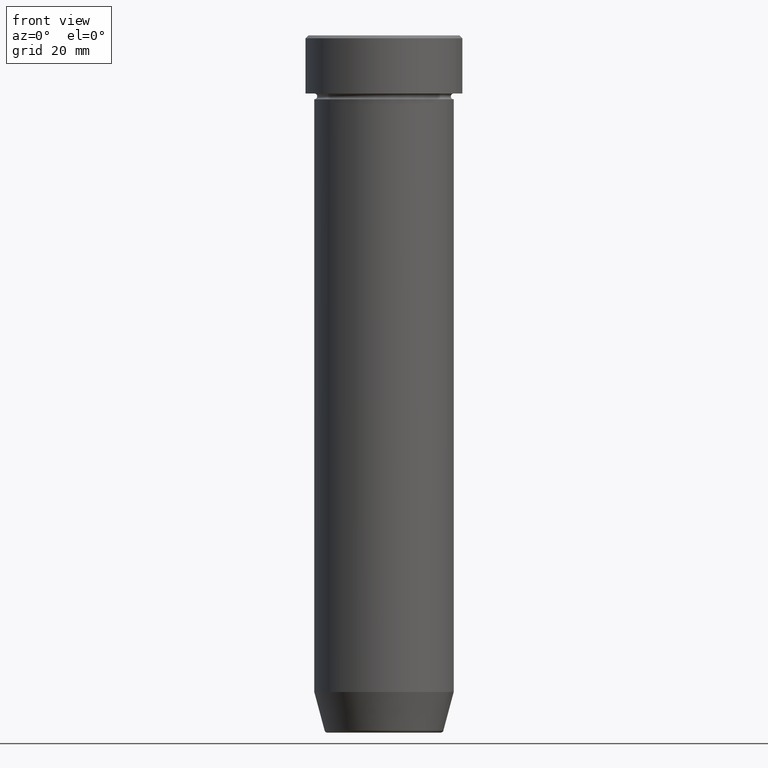
[diagram: clean part render]
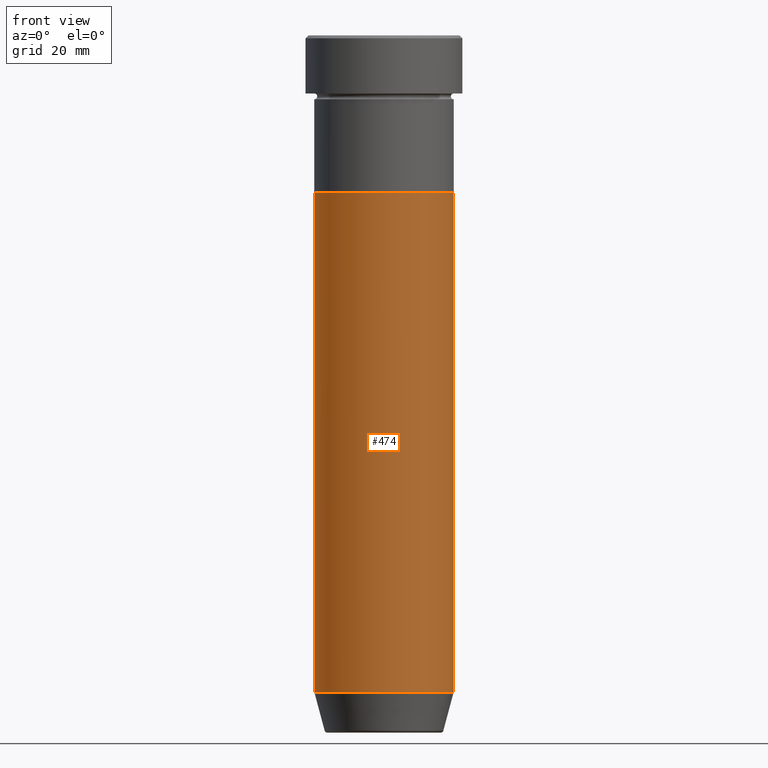
[diagram: same view with one face highlighted and labeled with its STEP entity id]
A machine part, front view. The second image highlights one B-rep face of the part: STEP entity #474.
In plain terms, the highlighted cylindrical surface (partial cylindrical patch) has radius 12 mm, axis along (-0, -0, 1).
Its self-contained STEP definition (entity closure, byte-faithful):
#5 = DIRECTION ( 'NONE',  ( 1.000000000000000000, 0.000000000000000000, 0.000000000000000000 ) ) ;
#35 = ORIENTED_EDGE ( 'NONE', *, *, #381, .F. ) ;
#52 = VECTOR ( 'NONE', #573, 1000.000000000000000 ) ;
#64 = EDGE_LOOP ( 'NONE', ( #35, #463, #305, #131 ) ) ;
#83 = VERTEX_POINT ( 'NONE', #183 ) ;
#92 = CARTESIAN_POINT ( 'NONE',  ( 0.000000000000000000, 0.000000000000000000, -27.00000000000000000 ) ) ;
#99 = CARTESIAN_POINT ( 'NONE',  ( 12.00000000000000000, 0.000000000000000000, -112.9999999999999858 ) ) ;
#105 = CARTESIAN_POINT ( 'NONE',  ( 12.00000000000000000, 0.000000000000000000, 0.000000000000000000 ) ) ;
#110 = EDGE_CURVE ( 'NONE', #158, #83, #146, .T. ) ;
#117 = FACE_OUTER_BOUND ( 'NONE', #64, .T. ) ;
#131 = ORIENTED_EDGE ( 'NONE', *, *, #110, .F. ) ;
#136 = CARTESIAN_POINT ( 'NONE',  ( -12.00000000000000000, 1.469576158976823947E-15, -27.00000000000000000 ) ) ;
#146 = CIRCLE ( 'NONE', #280, 12.00000000000000000 ) ;
#150 = DIRECTION ( 'NONE',  ( -0.000000000000000000, -0.000000000000000000, 1.000000000000000000 ) ) ;
#158 = VERTEX_POINT ( 'NONE', #136 ) ;
#159 = DIRECTION ( 'NONE',  ( 1.000000000000000000, 0.000000000000000000, 0.000000000000000000 ) ) ;
#183 = CARTESIAN_POINT ( 'NONE',  ( 12.00000000000000000, 0.000000000000000000, -27.00000000000000000 ) ) ;
#198 = LINE ( 'NONE', #105, #315 ) ;
#208 = DIRECTION ( 'NONE',  ( -0.000000000000000000, -0.000000000000000000, 1.000000000000000000 ) ) ;
#226 = DIRECTION ( 'NONE',  ( 1.000000000000000000, 0.000000000000000000, 0.000000000000000000 ) ) ;
#229 = VERTEX_POINT ( 'NONE', #466 ) ;
#246 = AXIS2_PLACEMENT_3D ( 'NONE', #456, #533, #226 ) ;
#270 = VERTEX_POINT ( 'NONE', #99 ) ;
#280 = AXIS2_PLACEMENT_3D ( 'NONE', #92, #326, #5 ) ;
#293 = CARTESIAN_POINT ( 'NONE',  ( 0.000000000000000000, 0.000000000000000000, -112.9999999999999858 ) ) ;
#305 = ORIENTED_EDGE ( 'NONE', *, *, #337, .T. ) ;
#315 = VECTOR ( 'NONE', #150, 1000.000000000000000 ) ;
#325 = AXIS2_PLACEMENT_3D ( 'NONE', #293, #208, #159 ) ;
#326 = DIRECTION ( 'NONE',  ( -0.000000000000000000, -0.000000000000000000, 1.000000000000000000 ) ) ;
#337 = EDGE_CURVE ( 'NONE', #270, #83, #198, .T. ) ;
#346 = LINE ( 'NONE', #386, #52 ) ;
#373 = EDGE_CURVE ( 'NONE', #229, #270, #503, .T. ) ;
#381 = EDGE_CURVE ( 'NONE', #229, #158, #346, .T. ) ;
#386 = CARTESIAN_POINT ( 'NONE',  ( -12.00000000000000000, 1.469576158976823947E-15, 0.000000000000000000 ) ) ;
#456 = CARTESIAN_POINT ( 'NONE',  ( 0.000000000000000000, 0.000000000000000000, 0.000000000000000000 ) ) ;
#463 = ORIENTED_EDGE ( 'NONE', *, *, #373, .T. ) ;
#466 = CARTESIAN_POINT ( 'NONE',  ( -12.00000000000000000, 1.469576158976823947E-15, -112.9999999999999858 ) ) ;
#474 = ADVANCED_FACE ( 'NONE', ( #117 ), #585, .T. ) ;
#503 = CIRCLE ( 'NONE', #325, 12.00000000000000000 ) ;
#533 = DIRECTION ( 'NONE',  ( -0.000000000000000000, -0.000000000000000000, 1.000000000000000000 ) ) ;
#573 = DIRECTION ( 'NONE',  ( -0.000000000000000000, -0.000000000000000000, 1.000000000000000000 ) ) ;
#585 = CYLINDRICAL_SURFACE ( 'NONE', #246, 12.00000000000000000 ) ;